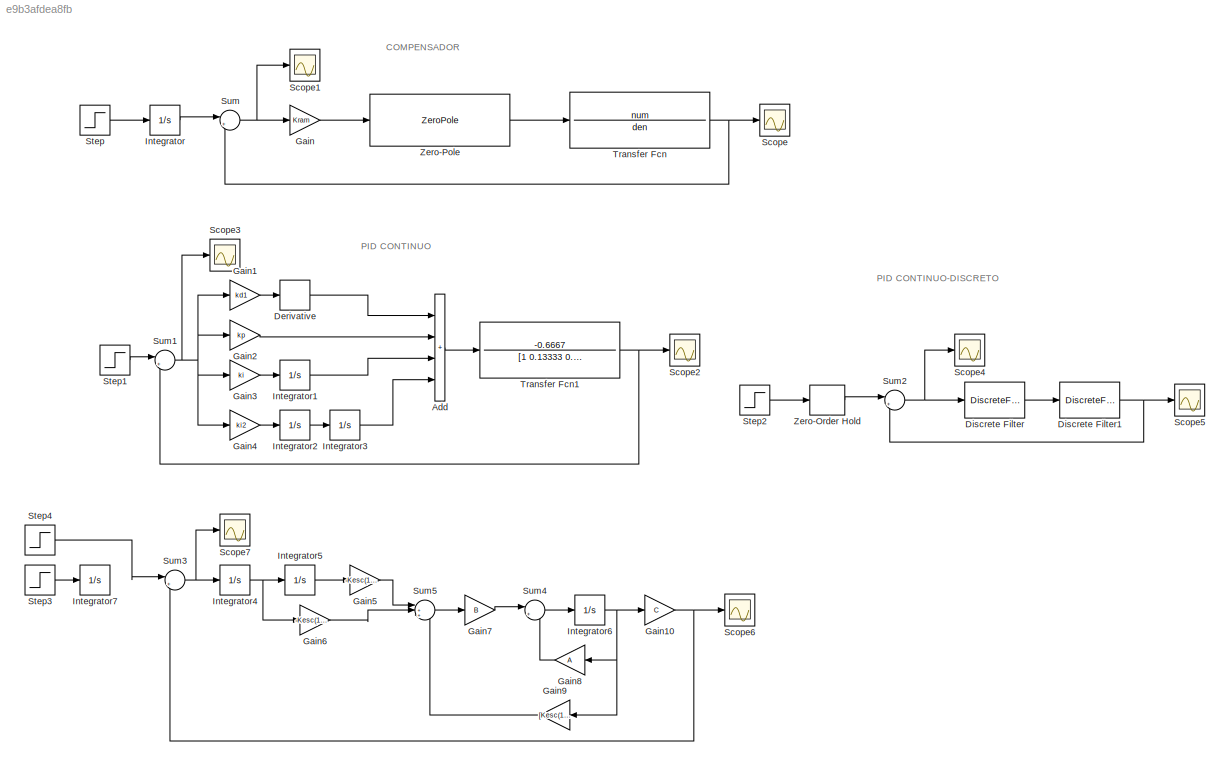
MODEL slx_e9b3afdea8fb
KIND model
CONFIG AbsTol = auto
CONFIG EnableMultiTasking = off
CONFIG FixedStep = auto
CONFIG MaxStep = auto
CONFIG MinStep = auto
CONFIG RelTol = 1e-3
CONFIG SampleTimeConstraint = Unconstrained
CONFIG SolverName = VariableStepAuto
CONFIG StartTime = 0.0
CONFIG StopTime = 100
BLOCK [Sum] Add
  IconShape = rectangular
  Inputs = ++++
  Ports = [4, 1]
BLOCK [Derivative] Derivative
BLOCK [DiscreteFilter] Discrete Filter
  Denominator = ftPIDdisc.Denominator{1,1}
  InputPortMap = u0
  Numerator = ftPIDdisc.Numerator{1,1}
  Ports = [1, 1]
BLOCK [DiscreteFilter] Discrete Filter1
  Denominator = ftDisc.Denominator{1,1}
  InputPortMap = u0
  Numerator = ftDisc.Numerator{1,1}
  Ports = [1, 1]
BLOCK [Gain] Gain
  Gain = Kram
BLOCK [Gain] Gain1
  Gain = kd1
BLOCK [Gain] Gain10
  Gain = C
  Multiplication = Matrix(K*u)
BLOCK [Gain] Gain2
  Gain = kp
BLOCK [Gain] Gain3
  Gain = ki
BLOCK [Gain] Gain4
  Gain = ki2
BLOCK [Gain] Gain5
  Gain = -Kesc(1,4)
BLOCK [Gain] Gain6
  Gain = -Kesc(1,3)
BLOCK [Gain] Gain7
  Gain = B
  Multiplication = Matrix(K*u)
BLOCK [Gain] Gain8
  Gain = A
  Multiplication = Matrix(K*u)
  NameLocation = top
BLOCK [Gain] Gain9
  Gain = [Kesc(1,1),Kesc(1,2)]
  Multiplication = Matrix(K*u)
  NameLocation = top
BLOCK [Integrator] Integrator
  Ports = [1, 1]
BLOCK [Integrator] Integrator1
  Ports = [1, 1]
BLOCK [Integrator] Integrator2
  Ports = [1, 1]
BLOCK [Integrator] Integrator3
  Ports = [1, 1]
BLOCK [Integrator] Integrator4
  Ports = [1, 1]
BLOCK [Integrator] Integrator5
  Ports = [1, 1]
BLOCK [Integrator] Integrator6
  Ports = [1, 1]
BLOCK [Integrator] Integrator7
  Ports = [1, 1]
BLOCK [Scope] Scope
  Floating = off
  NumInputPorts = 1
  Ports = [1]
  ScopeSpecificationString = Simulink.scopes.TimeScopeBlockCfg('CurrentConfiguration', extmgr.ConfigurationSet(extmgr.Configuration('Core','General UI',true),extmgr.Configuration('Core','Source UI',true),extmgr.Configuration('Sources','WiredSimulink',true),extmgr.Configuration('Visuals','Time Domain',true,'SerializedDisplays',{struct('MinYLimReal','-1.02845','MaxYLimReal','0.11427','YLabelReal','','MinYLimMag','0.00000','MaxY...<+1332ch>
BLOCK [Scope] Scope1
  Floating = off
  NumInputPorts = 1
  Ports = [1]
  ScopeSpecificationString = Simulink.scopes.TimeScopeBlockCfg('CurrentConfiguration', extmgr.ConfigurationSet(extmgr.Configuration('Core','General UI',true),extmgr.Configuration('Core','Source UI',true),extmgr.Configuration('Sources','WiredSimulink',true,'DataLoggingVariableName','ScopeData1'),extmgr.Configuration('Visuals','Time Domain',true,'SerializedDisplays',{struct('MinYLimReal','-12.48927','MaxYLimReal','112.40345','Y...<+1372ch>
BLOCK [Scope] Scope2
  Floating = off
  NumInputPorts = 1
  Ports = [1]
  ScopeSpecificationString = Simulink.scopes.TimeScopeBlockCfg('CurrentConfiguration', extmgr.ConfigurationSet(extmgr.Configuration('Core','General UI',true),extmgr.Configuration('Core','Source UI',true),extmgr.Configuration('Sources','WiredSimulink',true,'DataLoggingVariableName','ScopeData2'),extmgr.Configuration('Visuals','Time Domain',true,'SerializedDisplays',{struct('MinYLimReal','-0.15674','MaxYLimReal','1.41051','YLab...<+1372ch>
BLOCK [Scope] Scope3
  Floating = off
  NumInputPorts = 1
  Ports = [1]
  ScopeSpecificationString = Simulink.scopes.TimeScopeBlockCfg('CurrentConfiguration', extmgr.ConfigurationSet(extmgr.Configuration('Core','General UI',true),extmgr.Configuration('Core','Source UI',true),extmgr.Configuration('Sources','WiredSimulink',true,'DataLoggingVariableName','ScopeData3'),extmgr.Configuration('Visuals','Time Domain',true,'SerializedDisplays',{struct('MinYLimReal','-0.41051','MaxYLimReal','1.15674','YLab...<+1363ch>
BLOCK [Scope] Scope4
  Floating = off
  NumInputPorts = 1
  Ports = [1]
  ScopeSpecificationString = Simulink.scopes.TimeScopeBlockCfg('CurrentConfiguration', extmgr.ConfigurationSet(extmgr.Configuration('Core','General UI',true),extmgr.Configuration('Core','Source UI',true),extmgr.Configuration('Sources','WiredSimulink',true,'DataLoggingVariableName','ScopeData4'),extmgr.Configuration('Visuals','Time Domain',true,'SerializedDisplays',{struct('MinYLimReal','-0.4045','MaxYLimReal','1.15073','YLabe...<+1361ch>
BLOCK [Scope] Scope5
  Floating = off
  NumInputPorts = 1
  Ports = [1]
  ScopeSpecificationString = Simulink.scopes.TimeScopeBlockCfg('CurrentConfiguration', extmgr.ConfigurationSet(extmgr.Configuration('Core','General UI',true),extmgr.Configuration('Core','Source UI',true),extmgr.Configuration('Sources','WiredSimulink',true,'DataLoggingVariableName','ScopeData5'),extmgr.Configuration('Visuals','Time Domain',true,'SerializedDisplays',{struct('MinYLimReal','-0.15073','MaxYLimReal','1.4045','YLabe...<+1371ch>
BLOCK [Scope] Scope6
  Floating = off
  NumInputPorts = 1
  Ports = [1]
  ScopeSpecificationString = Simulink.scopes.TimeScopeBlockCfg('CurrentConfiguration', extmgr.ConfigurationSet(extmgr.Configuration('Core','General UI',true),extmgr.Configuration('Core','Source UI',true),extmgr.Configuration('Sources','WiredSimulink',true,'DataLoggingVariableName','ScopeData6'),extmgr.Configuration('Visuals','Time Domain',true,'SerializedDisplays',{struct('MinYLimReal','-2661.44326','MaxYLimReal','1800.6338',...<+1385ch>
BLOCK [Scope] Scope7
  Floating = off
  NumInputPorts = 1
  Ports = [1]
  ScopeSpecificationString = Simulink.scopes.TimeScopeBlockCfg('CurrentConfiguration', extmgr.ConfigurationSet(extmgr.Configuration('Core','General UI',true),extmgr.Configuration('Core','Source UI',true),extmgr.Configuration('Sources','WiredSimulink',true,'DataLoggingVariableName','ScopeData7'),extmgr.Configuration('Visuals','Time Domain',true,'SerializedDisplays',{struct('MinYLimReal','-1805.52916','MaxYLimReal','2715.50149'...<+1385ch>
BLOCK [Step] Step
  SampleTime = 0
BLOCK [Step] Step1
  SampleTime = 0
  Time = 0
BLOCK [Step] Step2
  SampleTime = 0
  Time = 0
BLOCK [Step] Step3
  SampleTime = 0
  Time = 0
BLOCK [Step] Step4
  SampleTime = 0
  Time = 0
BLOCK [Sum] Sum
  Inputs = |+-
  Ports = [2, 1]
BLOCK [Sum] Sum1
  Inputs = |+-
  Ports = [2, 1]
BLOCK [Sum] Sum2
  Inputs = |+-
  Ports = [2, 1]
BLOCK [Sum] Sum3
  Inputs = |+-
  Ports = [2, 1]
BLOCK [Sum] Sum4
  Inputs = |++
  Ports = [2, 1]
BLOCK [Sum] Sum5
  Inputs = |++-
  Ports = [3, 1]
BLOCK [TransferFcn] Transfer Fcn
  Denominator = den
  Numerator = num
BLOCK [TransferFcn] Transfer Fcn1
  Denominator = [1 0.13333 0.8667]
  Numerator = -0.6667
BLOCK [ZeroOrderHold] Zero-Order Hold
  SampleTime = wMuestr
BLOCK [ZeroPole] Zero-Pole
  Poles = rampPOL
  Zeros = rampCER
ANNOTATION (root): COMPENSADOR
ANNOTATION (root): PID CONTINUO
ANNOTATION (root): PID CONTINUO-DISCRETO
LINE Add:1 -> Transfer Fcn1:1
LINE Derivative:1 -> Add:1
NET Discrete Filter1:1 -> Scope5:1, Sum2:2
LINE Discrete Filter:1 -> Discrete Filter1:1
NET Gain10:1 -> Scope6:1, Sum3:2
LINE Gain1:1 -> Derivative:1
LINE Gain2:1 -> Add:2
LINE Gain3:1 -> Integrator1:1
LINE Gain4:1 -> Integrator2:1
LINE Gain5:1 -> Sum5:1
LINE Gain6:1 -> Sum5:2
LINE Gain7:1 -> Sum4:1
LINE Gain8:1 -> Sum4:2
LINE Gain9:1 -> Sum5:3
LINE Gain:1 -> Zero-Pole:1
LINE Integrator1:1 -> Add:3
LINE Integrator2:1 -> Integrator3:1
LINE Integrator3:1 -> Add:4
NET Integrator4:1 -> Gain6:1, Integrator5:1
LINE Integrator5:1 -> Gain5:1
NET Integrator6:1 -> Gain10:1, Gain8:1, Gain9:1
LINE Integrator:1 -> Sum:1
LINE Step1:1 -> Sum1:1
LINE Step2:1 -> Zero-Order Hold:1
LINE Step3:1 -> Integrator7:1
LINE Step4:1 -> Sum3:1
LINE Step:1 -> Integrator:1
NET Sum1:1 -> Gain1:1, Gain2:1, Gain3:1, Gain4:1, Scope3:1
NET Sum2:1 -> Discrete Filter:1, Scope4:1
NET Sum3:1 -> Integrator4:1, Scope7:1
LINE Sum4:1 -> Integrator6:1
LINE Sum5:1 -> Gain7:1
NET Sum:1 -> Gain:1, Scope1:1
NET Transfer Fcn1:1 -> Scope2:1, Sum1:2
NET Transfer Fcn:1 -> Scope:1, Sum:2
LINE Zero-Order Hold:1 -> Sum2:1
LINE Zero-Pole:1 -> Transfer Fcn:1
note: NET lines group one-source signal fan-out (src -> all destinations, sorted); 1:1 wires keep LINE
